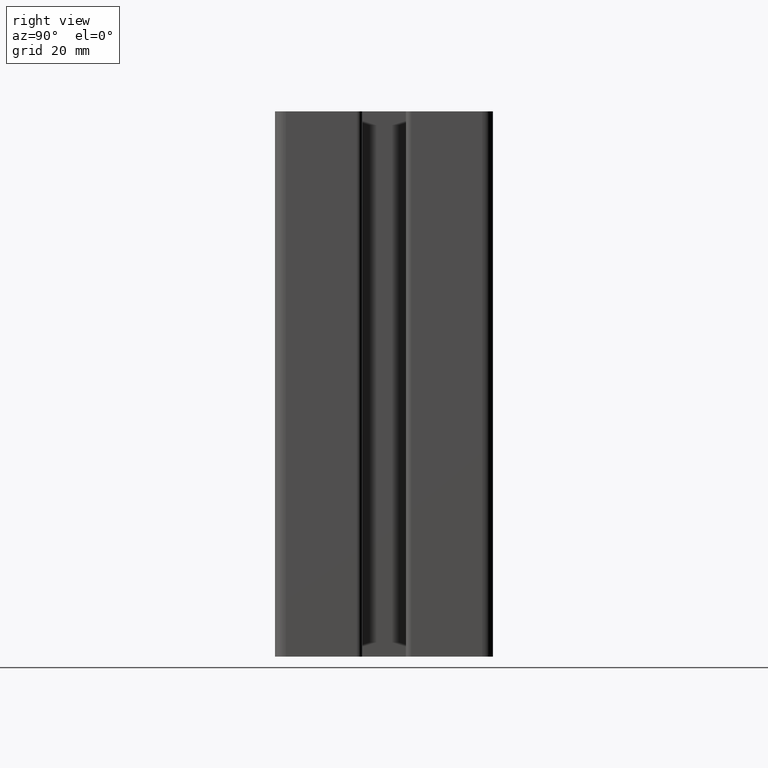
[diagram: clean part render]
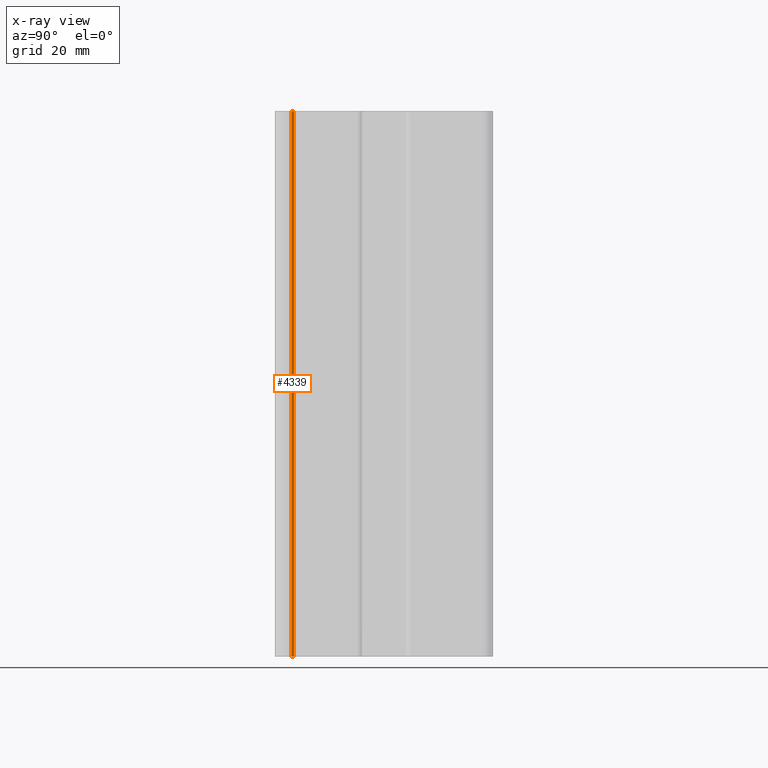
[diagram: x-ray — body ghosted, one internal face saturated and labeled with its STEP entity id]
A machine part, right view, then the same camera in x-ray: the body is ghosted and one INTERNAL B-rep face — a face not visible from any outside direction — is saturated and labeled: STEP entity #4339.
In plain terms, the highlighted planar face has unit normal (-1, -0, 0).
Its self-contained STEP definition (entity closure, byte-faithful):
#48=PLANE('',#4635);
#265=LINE('',#6668,#717);
#267=LINE('',#6674,#719);
#268=LINE('',#6676,#720);
#269=LINE('',#6677,#721);
#717=VECTOR('',#5341,100.);
#719=VECTOR('',#5347,0.500001995948844);
#720=VECTOR('',#5348,100.);
#721=VECTOR('',#5349,0.500001995948844);
#1121=FACE_OUTER_BOUND('',#1347,.T.);
#1347=EDGE_LOOP('',(#3105,#3106,#3107,#3108));
#1865=VERTEX_POINT('',#6664);
#1867=VERTEX_POINT('',#6667);
#1869=VERTEX_POINT('',#6673);
#1870=VERTEX_POINT('',#6675);
#2374=EDGE_CURVE('',#1867,#1865,#265,.T.);
#2377=EDGE_CURVE('',#1869,#1865,#267,.T.);
#2378=EDGE_CURVE('',#1870,#1869,#268,.T.);
#2379=EDGE_CURVE('',#1867,#1870,#269,.T.);
#3105=ORIENTED_EDGE('',*,*,#2377,.F.);
#3106=ORIENTED_EDGE('',*,*,#2378,.F.);
#3107=ORIENTED_EDGE('',*,*,#2379,.F.);
#3108=ORIENTED_EDGE('',*,*,#2374,.T.);
#4339=ADVANCED_FACE('',(#1121),#48,.F.);
#4635=AXIS2_PLACEMENT_3D('',#6672,#5345,#5346);
#5341=DIRECTION('',(0.,0.,1.));
#5345=DIRECTION('center_axis',(-1.,-3.55269949678759E-14,0.));
#5346=DIRECTION('ref_axis',(3.5527136788005E-14,-1.,0.));
#5347=DIRECTION('',(-3.55269949678759E-14,1.,0.));
#5348=DIRECTION('',(0.,0.,1.));
#5349=DIRECTION('',(3.55269949678759E-14,-1.,0.));
#6664=CARTESIAN_POINT('',(-12.,-16.4999980040512,100.));
#6667=CARTESIAN_POINT('',(-12.,-16.4999980040512,0.));
#6668=CARTESIAN_POINT('',(-12.,-16.4999980040512,0.));
#6672=CARTESIAN_POINT('Origin',(-12.,-16.4999980040512,0.));
#6673=CARTESIAN_POINT('',(-12.,-17.,100.));
#6674=CARTESIAN_POINT('',(-12.0000000000003,-8.24999900202581,100.));
#6675=CARTESIAN_POINT('',(-12.,-17.,0.));
#6676=CARTESIAN_POINT('',(-12.,-17.,0.));
#6677=CARTESIAN_POINT('',(-12.0000000000003,-8.24999900202581,0.));